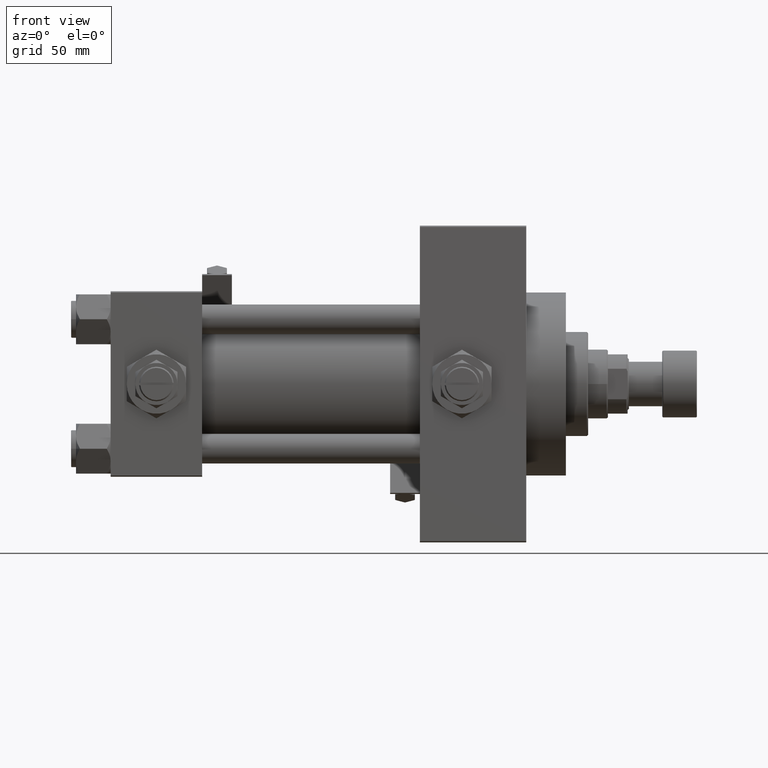
[diagram: clean part render]
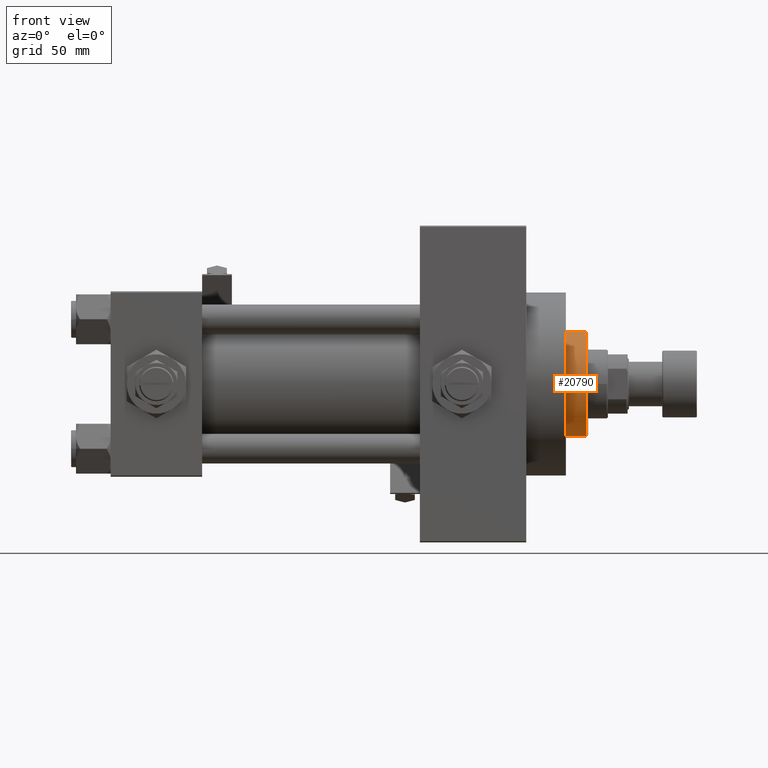
[diagram: same view with one face highlighted and labeled with its STEP entity id]
A machine part, front view. The second image highlights one B-rep face of the part: STEP entity #20790.
In plain terms, the highlighted cylindrical surface (partial cylindrical patch) has radius 21 mm, axis along (-1, 0, 0).
Its self-contained STEP definition (entity closure, byte-faithful):
#1063 = EDGE_CURVE ( 'NONE', #2976, #23887, #9832, .T. ) ;
#2976 = VERTEX_POINT ( 'NONE', #22165 ) ;
#3007 = VECTOR ( 'NONE', #25007, 1000.000000000000000 ) ;
#3304 = FACE_OUTER_BOUND ( 'NONE', #11021, .T. ) ;
#4148 = CARTESIAN_POINT ( 'NONE',  ( -21.00000000000000000, 0.000000000000000000, 43.25999999999999801 ) ) ;
#6862 = ORIENTED_EDGE ( 'NONE', *, *, #38681, .T. ) ;
#7302 = CIRCLE ( 'NONE', #11409, 21.00000000000000000 ) ;
#7377 = DIRECTION ( 'NONE',  ( 1.000000000000000000, 0.000000000000000000, 0.000000000000000000 ) ) ;
#9832 = LINE ( 'NONE', #41429, #3007 ) ;
#11021 = EDGE_LOOP ( 'NONE', ( #15503, #13911, #6862, #35950 ) ) ;
#11274 = CARTESIAN_POINT ( 'NONE',  ( 0.000000000000000000, 0.000000000000000000, 52.25999999999999801 ) ) ;
#11283 = DIRECTION ( 'NONE',  ( -0.000000000000000000, -0.000000000000000000, -1.000000000000000000 ) ) ;
#11409 = AXIS2_PLACEMENT_3D ( 'NONE', #27152, #26659, #7377 ) ;
#11754 = VERTEX_POINT ( 'NONE', #4148 ) ;
#11793 = DIRECTION ( 'NONE',  ( -0.000000000000000000, -0.000000000000000000, -1.000000000000000000 ) ) ;
#12396 = CIRCLE ( 'NONE', #17304, 21.00000000000000000 ) ;
#13510 = CARTESIAN_POINT ( 'NONE',  ( 21.00000000000000000, 2.571758278209441661E-15, 43.25999999999999801 ) ) ;
#13519 = EDGE_CURVE ( 'NONE', #29958, #2976, #12396, .T. ) ;
#13911 = ORIENTED_EDGE ( 'NONE', *, *, #1063, .T. ) ;
#15503 = ORIENTED_EDGE ( 'NONE', *, *, #13519, .T. ) ;
#17304 = AXIS2_PLACEMENT_3D ( 'NONE', #48166, #43814, #25052 ) ;
#20790 = ADVANCED_FACE ( 'NONE', ( #3304 ), #42869, .T. ) ;
#21712 = EDGE_CURVE ( 'NONE', #29958, #11754, #24122, .T. ) ;
#22165 = CARTESIAN_POINT ( 'NONE',  ( 21.00000000000000000, 2.571758278209441661E-15, 51.75999999999999801 ) ) ;
#23887 = VERTEX_POINT ( 'NONE', #13510 ) ;
#24122 = LINE ( 'NONE', #31830, #24851 ) ;
#24825 = AXIS2_PLACEMENT_3D ( 'NONE', #11274, #11793, #27450 ) ;
#24851 = VECTOR ( 'NONE', #11283, 1000.000000000000000 ) ;
#25007 = DIRECTION ( 'NONE',  ( -0.000000000000000000, -0.000000000000000000, -1.000000000000000000 ) ) ;
#25052 = DIRECTION ( 'NONE',  ( 1.000000000000000000, 0.000000000000000000, 0.000000000000000000 ) ) ;
#26659 = DIRECTION ( 'NONE',  ( 0.000000000000000000, 0.000000000000000000, 1.000000000000000000 ) ) ;
#27152 = CARTESIAN_POINT ( 'NONE',  ( 0.000000000000000000, 0.000000000000000000, 43.25999999999999801 ) ) ;
#27450 = DIRECTION ( 'NONE',  ( -1.000000000000000000, 0.000000000000000000, 0.000000000000000000 ) ) ;
#29958 = VERTEX_POINT ( 'NONE', #46706 ) ;
#31830 = CARTESIAN_POINT ( 'NONE',  ( -21.00000000000000000, 0.000000000000000000, 52.25999999999999801 ) ) ;
#35950 = ORIENTED_EDGE ( 'NONE', *, *, #21712, .F. ) ;
#38681 = EDGE_CURVE ( 'NONE', #23887, #11754, #7302, .T. ) ;
#41429 = CARTESIAN_POINT ( 'NONE',  ( 21.00000000000000000, 2.571758278209441661E-15, 52.25999999999999801 ) ) ;
#42869 = CYLINDRICAL_SURFACE ( 'NONE', #24825, 21.00000000000000000 ) ;
#43814 = DIRECTION ( 'NONE',  ( 0.000000000000000000, 0.000000000000000000, -1.000000000000000000 ) ) ;
#46706 = CARTESIAN_POINT ( 'NONE',  ( -21.00000000000000000, 0.000000000000000000, 51.75999999999999801 ) ) ;
#48166 = CARTESIAN_POINT ( 'NONE',  ( 0.000000000000000000, 0.000000000000000000, 51.75999999999999801 ) ) ;